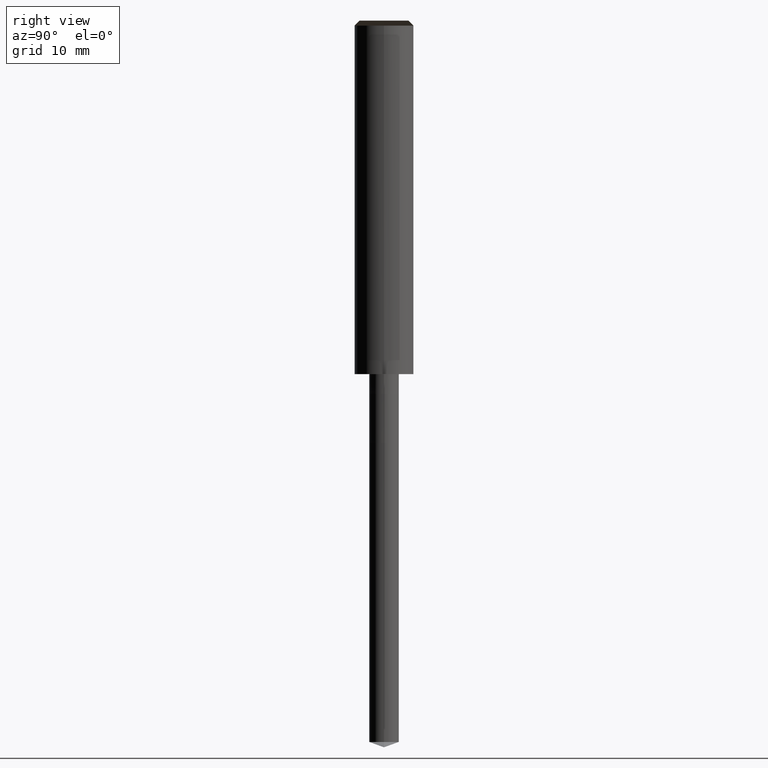
[diagram: clean part render]
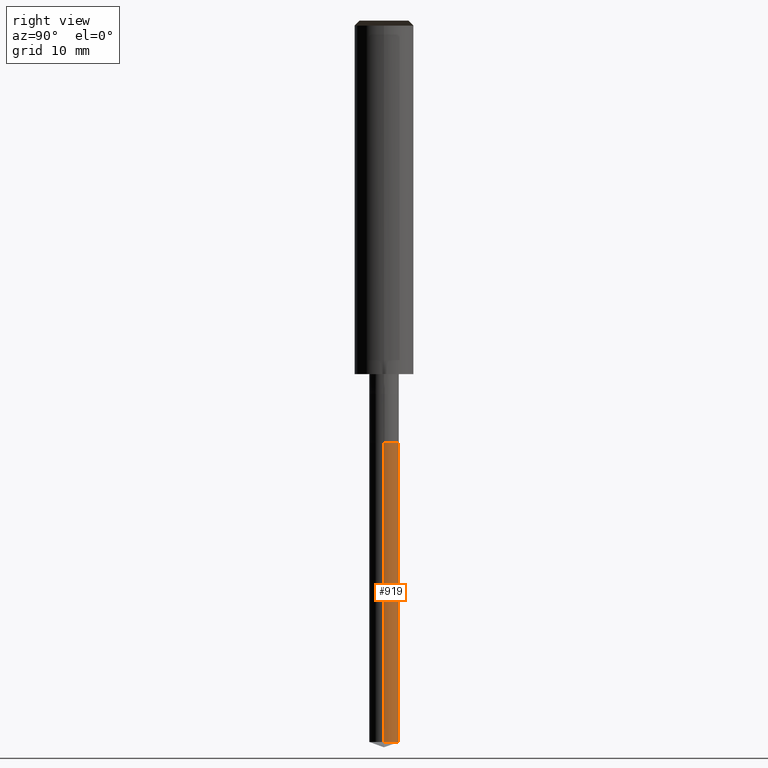
[diagram: same view with one face highlighted and labeled with its STEP entity id]
A machine part, right view. The second image highlights one B-rep face of the part: STEP entity #919.
In plain terms, the highlighted face is a freeform B-spline surface patch.
Its self-contained STEP definition (entity closure, byte-faithful):
#821=CARTESIAN_POINT('',(1.5,0.0,-37.454044648601));
#822=CARTESIAN_POINT('',(1.5,1.5,-37.454044648601));
#823=CARTESIAN_POINT('',(0.0,1.5,-37.454044648601));
#824=CARTESIAN_POINT('',(-1.5,1.5,-37.454044648601));
#825=CARTESIAN_POINT('',(-1.5,0.0,-37.454044648601));
#826=CARTESIAN_POINT('',(1.5,0.0,-7.0));
#827=CARTESIAN_POINT('',(1.5,1.5,-7.0));
#828=CARTESIAN_POINT('',(0.0,1.5,-7.0));
#829=CARTESIAN_POINT('',(-1.5,1.5,-7.0));
#830=CARTESIAN_POINT('',(-1.5,0.0,-7.0));
#900=(
BOUNDED_SURFACE()
B_SPLINE_SURFACE(1,2,(
(#821,#822,#823,#824,#825),
(#826,#827,#828,#829,#830)
), .UNSPECIFIED.,.F.,.F.,.F.)
B_SPLINE_SURFACE_WITH_KNOTS((2,2),(3,2,3),(
0.0,1.0),(
0.0,0.5,1.0), .UNSPECIFIED.)
GEOMETRIC_REPRESENTATION_ITEM()
RATIONAL_B_SPLINE_SURFACE(((1.0,0.707106781187,1.0,0.707106781187,1.0),
(1.0,0.707106781187,1.0,0.707106781187,1.0)
))
REPRESENTATION_ITEM('')
SURFACE()
);
#901=(
BOUNDED_CURVE()
B_SPLINE_CURVE(2,(#825,#824,#823,#822,#821),.UNSPECIFIED.,.F.,.F.)
B_SPLINE_CURVE_WITH_KNOTS((3,2,3),
(0.0,0.5,1.0),.UNSPECIFIED.)
CURVE()
GEOMETRIC_REPRESENTATION_ITEM()
RATIONAL_B_SPLINE_CURVE((1.0,0.707106781187,1.0,0.707106781187,1.0))
REPRESENTATION_ITEM('')
);
#902=(
BOUNDED_CURVE()
B_SPLINE_CURVE(1,(#821,#826),.UNSPECIFIED.,.F.,.F.)
B_SPLINE_CURVE_WITH_KNOTS((2,2),
(0.0,1.0),.UNSPECIFIED.)
CURVE()
GEOMETRIC_REPRESENTATION_ITEM()
RATIONAL_B_SPLINE_CURVE((1.0,1.0))
REPRESENTATION_ITEM('')
);
#903=(
BOUNDED_CURVE()
B_SPLINE_CURVE(2,(#826,#827,#828,#829,#830),.UNSPECIFIED.,.F.,.F.)
B_SPLINE_CURVE_WITH_KNOTS((3,2,3),
(0.0,0.5,1.0),.UNSPECIFIED.)
CURVE()
GEOMETRIC_REPRESENTATION_ITEM()
RATIONAL_B_SPLINE_CURVE((1.0,0.707106781187,1.0,0.707106781187,1.0))
REPRESENTATION_ITEM('')
);
#904=(
BOUNDED_CURVE()
B_SPLINE_CURVE(1,(#830,#825),.UNSPECIFIED.,.F.,.F.)
B_SPLINE_CURVE_WITH_KNOTS((2,2),
(0.0,1.0),.UNSPECIFIED.)
CURVE()
GEOMETRIC_REPRESENTATION_ITEM()
RATIONAL_B_SPLINE_CURVE((1.0,1.0))
REPRESENTATION_ITEM('')
);
#905=VERTEX_POINT('',#821);
#906=VERTEX_POINT('',#825);
#907=VERTEX_POINT('',#826);
#908=VERTEX_POINT('',#830);
#909=EDGE_CURVE('',#906,#905,#901,.T.);
#910=EDGE_CURVE('',#905,#907,#902,.T.);
#911=EDGE_CURVE('',#907,#908,#903,.T.);
#912=EDGE_CURVE('',#908,#906,#904,.T.);
#913=ORIENTED_EDGE('',*,*,#909,.T.);
#914=ORIENTED_EDGE('',*,*,#910,.T.);
#915=ORIENTED_EDGE('',*,*,#911,.T.);
#916=ORIENTED_EDGE('',*,*,#912,.T.);
#917=EDGE_LOOP('',(#913,#914,#915,#916));
#918=FACE_OUTER_BOUND('',#917,.T.);
#919=ADVANCED_FACE('',(#918),#900,.T.);